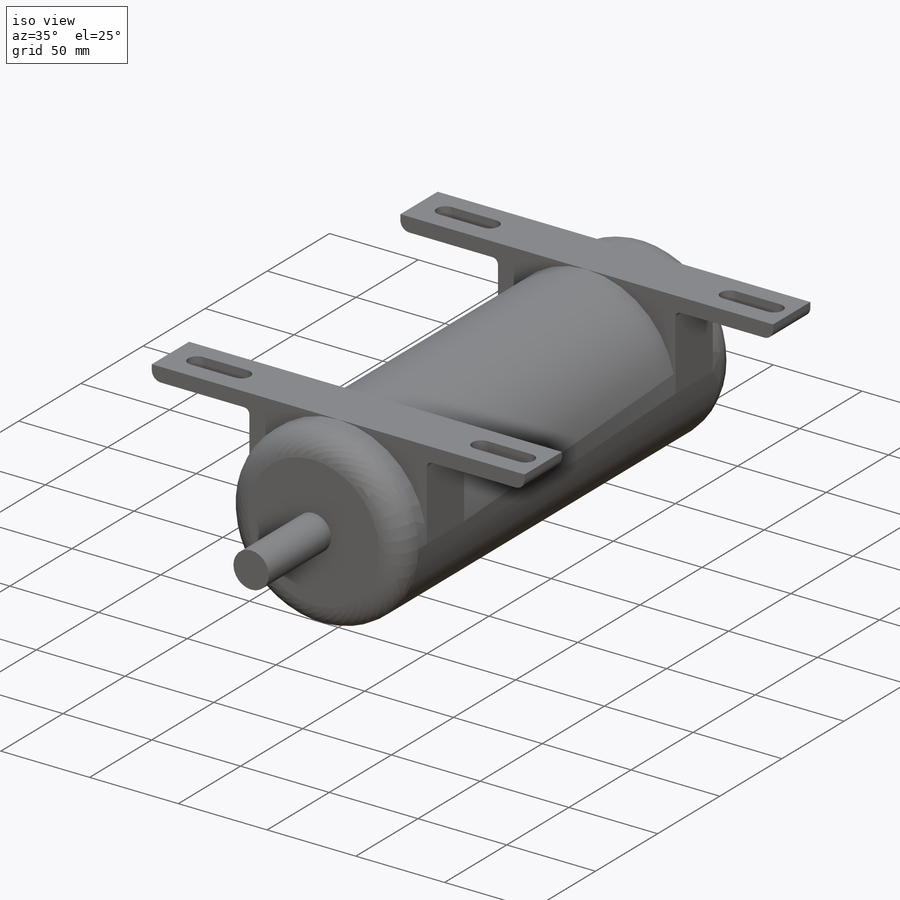
[diagram: iso view]
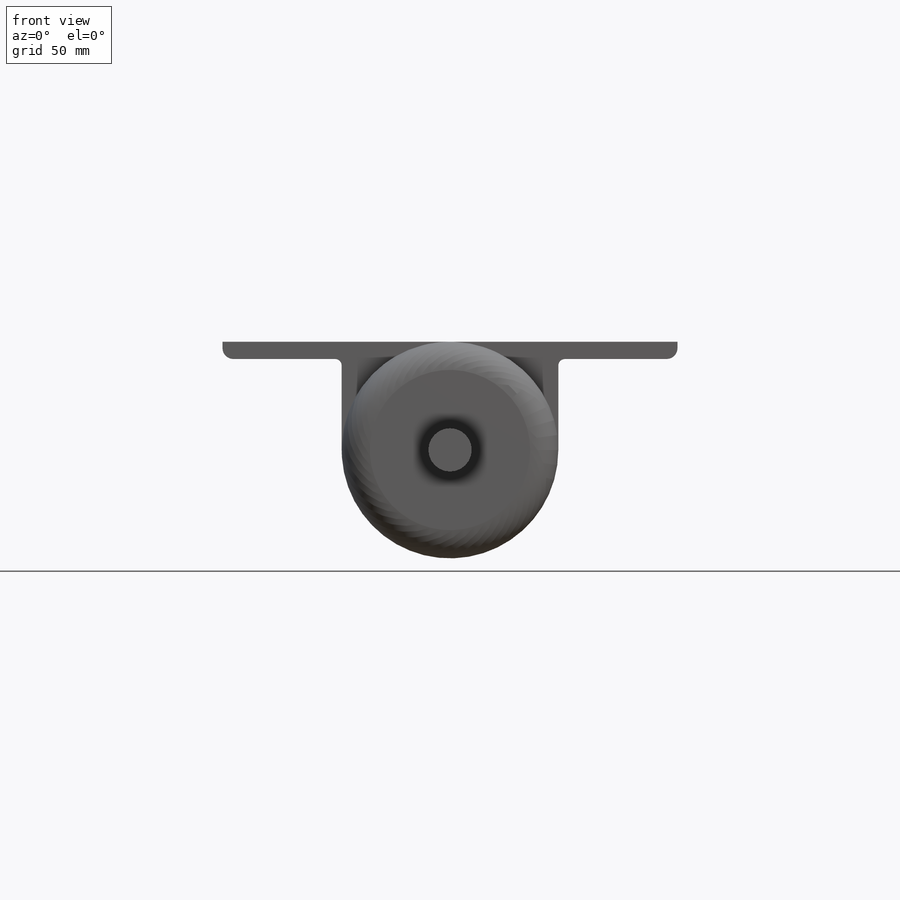
[diagram: front view]
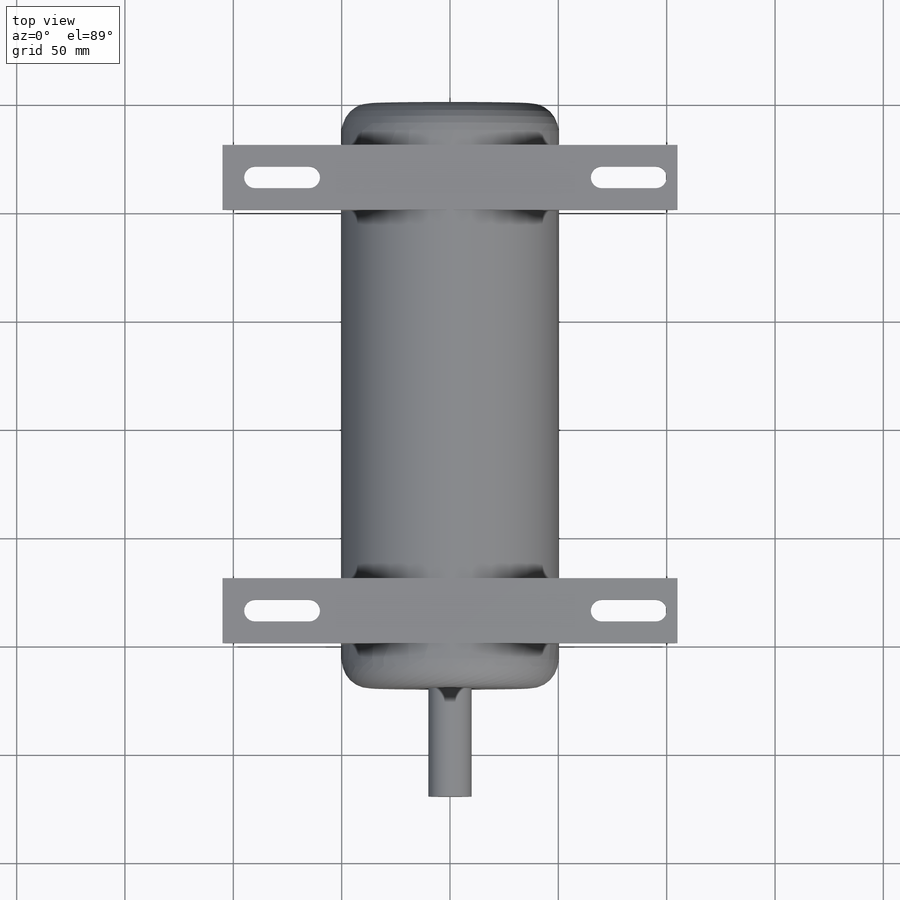
[diagram: top view]
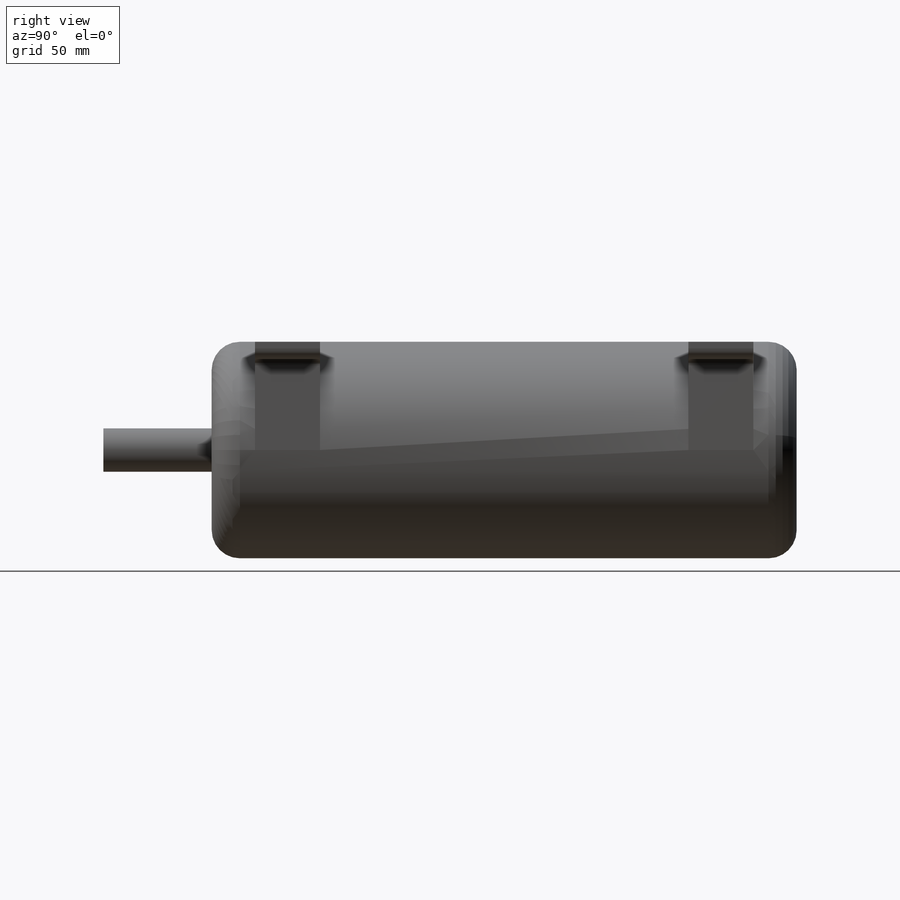
[diagram: right view]
SOLIDWORKS PART (.sldprt)
format: sldprt  version: not decoded by parser v0  size: 320,512 bytes
history: native  units: mm
features: sketch x5, extrude x3, fillet x3, mirror x2, cut_extrude x2, pattern_linear x2, material x1, plane x1 (+16 scaffold rows collapsed)
feature tree (35):
  scaffold x16  (default folders/planes/origin — collapsed)
  material  "Material <not specified>"
  sketch  "Sketch1"  dims[D1=100.0mm]
  extrude  "Boss-Extrude1"  Depth=270mm
  sketch  "Sketch2"  dims[D1=20.0mm]
  extrude  "Boss-Extrude2"  Depth=50mm
  sketch  "Sketch3"  dims[D1=30.0mm D2=210.0mm D3=105.0mm D4=20.0mm]
  extrude  "Boss-Extrude3"  Depth=50mm
  plane  "Plane1"  Offset=135mm
  mirror  "Mirror1"
  sketch  "Sketch4"  dims[D1=8.0mm]
  cut_extrude  "Cut-Extrude1"  Depth=50mm
  pattern_linear  "LPattern2"  Count1=2 Count2=1 Spacing1=200mm Spacing2=10mm
  mirror  "Mirror2"
  sketch  "Sketch7"  dims[D1=10.0mm D2=5.0mm D3=15.0mm D4=25.0mm]
  cut_extrude  "Cut-Extrude2"  [1 undecoded]
  pattern_linear  "LPattern4"  Count1=2 Count2=2 Spacing1=160mm Spacing2=200mm
  fillet  "Fillet1"  Radius=5mm
  fillet  "Fillet2"  Radius=3mm
  fillet  "Fillet3"  Radius=13mm
decode coverage: 14 of 17 modeling features carry decoded parameters
note: 1 parameter value undecoded
note: suppression state not decoded; provenance and decode notes live in map.json
